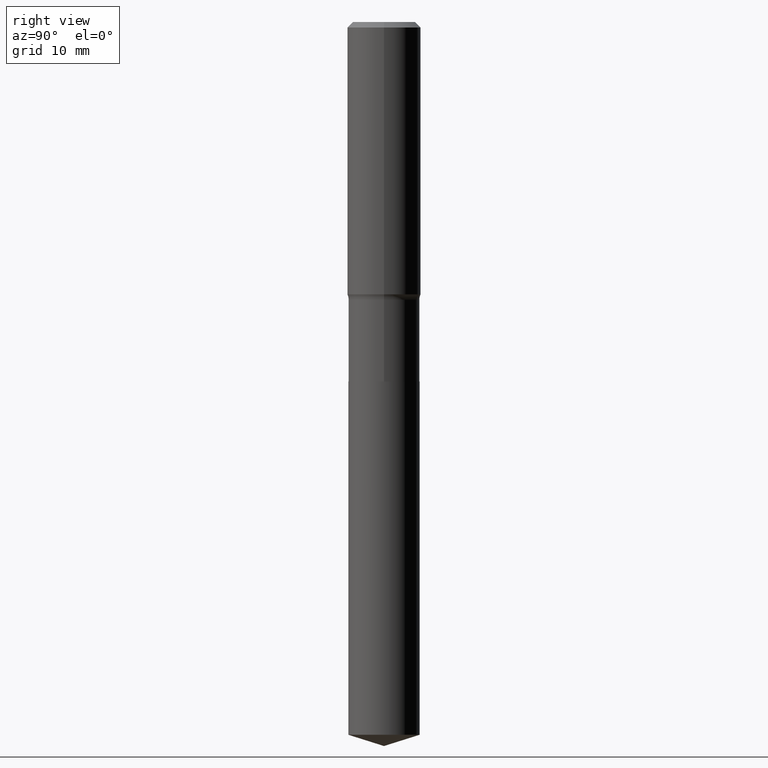
[diagram: clean part render]
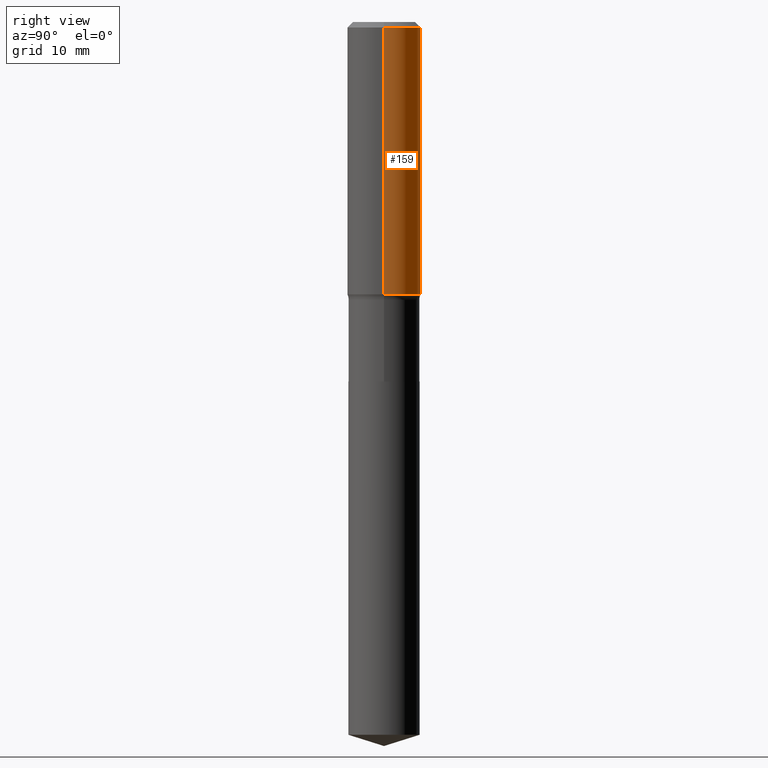
[diagram: same view with one face highlighted and labeled with its STEP entity id]
A machine part, right view. The second image highlights one B-rep face of the part: STEP entity #159.
In plain terms, the highlighted cylindrical surface (partial cylindrical patch) has radius 5.9995 mm, axis along (-0, 0, 1).
Its self-contained STEP definition (entity closure, byte-faithful):
#15 = DIRECTION ( 'NONE',  ( -2.445468806185136877E-29, 3.491481338843145188E-15, 1.000000000000000000 ) ) ;
#25 = ORIENTED_EDGE ( 'NONE', *, *, #266, .T. ) ;
#27 = VERTEX_POINT ( 'NONE', #81 ) ;
#68 = EDGE_CURVE ( 'NONE', #167, #358, #378, .T. ) ;
#69 = DIRECTION ( 'NONE',  ( -2.445468806185136597E-29, 3.491481338843145583E-15, 1.000000000000000000 ) ) ;
#72 = DIRECTION ( 'NONE',  ( 1.000000000000000000, -6.982962677686266711E-15, 0.000000000000000000 ) ) ;
#78 = CARTESIAN_POINT ( 'NONE',  ( 4.274184373566582098E-29, -6.102402509219707960E-15, -1.747797544076708398 ) ) ;
#81 = CARTESIAN_POINT ( 'NONE',  ( -0.2362000000000002431, -4.424100567354349199E-15, -1.747797544076708398 ) ) ;
#84 = FACE_OUTER_BOUND ( 'NONE', #204, .T. ) ;
#92 = EDGE_CURVE ( 'NONE', #27, #358, #444, .T. ) ;
#122 = DIRECTION ( 'NONE',  ( -2.445468806185136597E-29, 3.491481338843145583E-15, 1.000000000000000000 ) ) ;
#137 = CIRCLE ( 'NONE', #488, 0.2362000000000002431 ) ;
#158 = LINE ( 'NONE', #315, #197 ) ;
#159 = ADVANCED_FACE ( 'NONE', ( #84 ), #384, .T. ) ;
#163 = AXIS2_PLACEMENT_3D ( 'NONE', #270, #122, #386 ) ;
#167 = VERTEX_POINT ( 'NONE', #363 ) ;
#193 = DIRECTION ( 'NONE',  ( 1.000000000000000000, -6.982962677686265922E-15, 0.000000000000000000 ) ) ;
#197 = VECTOR ( 'NONE', #15, 39.37007874015748143 ) ;
#204 = EDGE_LOOP ( 'NONE', ( #25, #220, #206, #365 ) ) ;
#206 = ORIENTED_EDGE ( 'NONE', *, *, #68, .F. ) ;
#220 = ORIENTED_EDGE ( 'NONE', *, *, #92, .T. ) ;
#248 = CARTESIAN_POINT ( 'NONE',  ( -0.2362000000000001321, 1.678301941865357577E-15, -1.161852468318209457E-29 ) ) ;
#263 = DIRECTION ( 'NONE',  ( -2.445468806185136597E-29, 3.491481338843145583E-15, 1.000000000000000000 ) ) ;
#266 = EDGE_CURVE ( 'NONE', #443, #27, #137, .T. ) ;
#270 = CARTESIAN_POINT ( 'NONE',  ( 0.000000000000000000, 0.000000000000000000, 0.000000000000000000 ) ) ;
#315 = CARTESIAN_POINT ( 'NONE',  ( 0.2362000000000001321, -1.649375784469497117E-15, 1.151752954443000789E-29 ) ) ;
#337 = CARTESIAN_POINT ( 'NONE',  ( -0.2361999999999999933, -1.434750904662102404E-15, -0.03543000000000021826 ) ) ;
#358 = VERTEX_POINT ( 'NONE', #337 ) ;
#361 = VECTOR ( 'NONE', #401, 39.37007874015748143 ) ;
#363 = CARTESIAN_POINT ( 'NONE',  ( 0.2361999999999999933, -1.773078968304709514E-15, -0.03543000000000021826 ) ) ;
#365 = ORIENTED_EDGE ( 'NONE', *, *, #434, .F. ) ;
#378 = CIRCLE ( 'NONE', #398, 0.2361999999999999933 ) ;
#384 = CYLINDRICAL_SURFACE ( 'NONE', #163, 0.2362000000000001321 ) ;
#386 = DIRECTION ( 'NONE',  ( 1.000000000000000000, -6.982962677686266711E-15, 4.876176775795936353E-29 ) ) ;
#398 = AXIS2_PLACEMENT_3D ( 'NONE', #410, #69, #72 ) ;
#401 = DIRECTION ( 'NONE',  ( -2.445468806185136877E-29, 3.491481338843145188E-15, 1.000000000000000000 ) ) ;
#410 = CARTESIAN_POINT ( 'NONE',  ( 8.664295980313993487E-31, -1.237031838352134079E-16, -0.03543000000000021826 ) ) ;
#434 = EDGE_CURVE ( 'NONE', #443, #167, #158, .T. ) ;
#443 = VERTEX_POINT ( 'NONE', #470 ) ;
#444 = LINE ( 'NONE', #248, #361 ) ;
#470 = CARTESIAN_POINT ( 'NONE',  ( 0.2362000000000002431, -7.751778293689206063E-15, -1.747797544076708398 ) ) ;
#488 = AXIS2_PLACEMENT_3D ( 'NONE', #78, #263, #193 ) ;